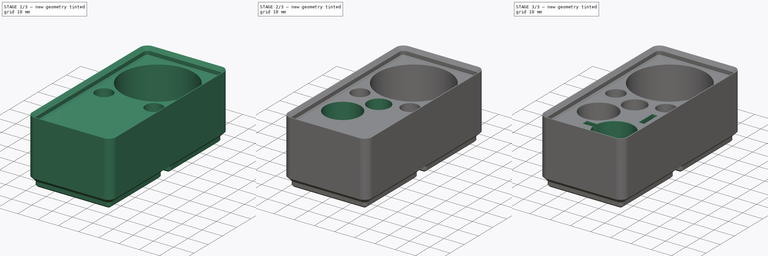
[diagram: build sequence overview — one tinted view per stage of 3, left to right]
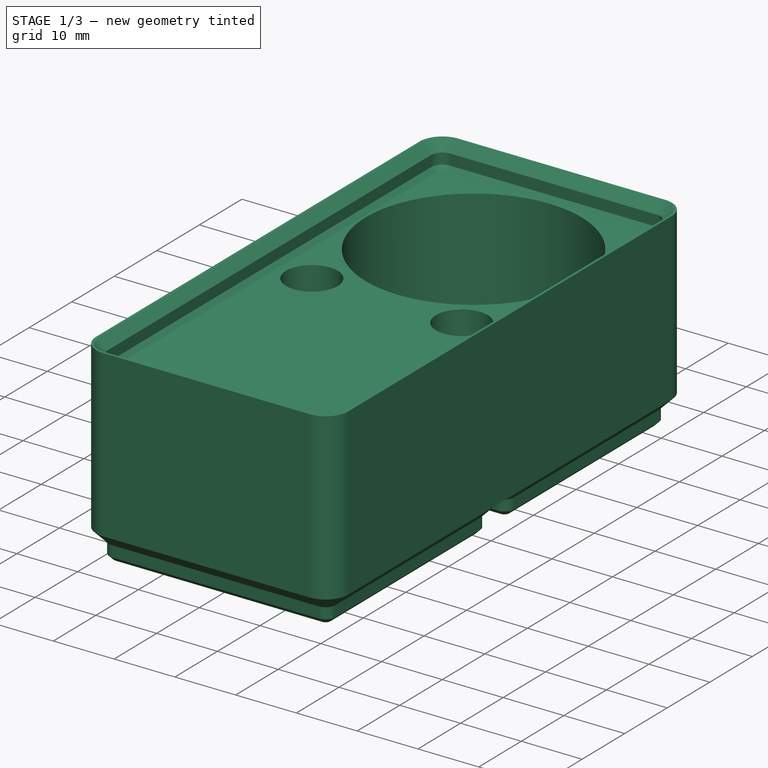
[diagram: stage 1 of 3 — iso view after this stage's code; geometry added in this stage tinted green]
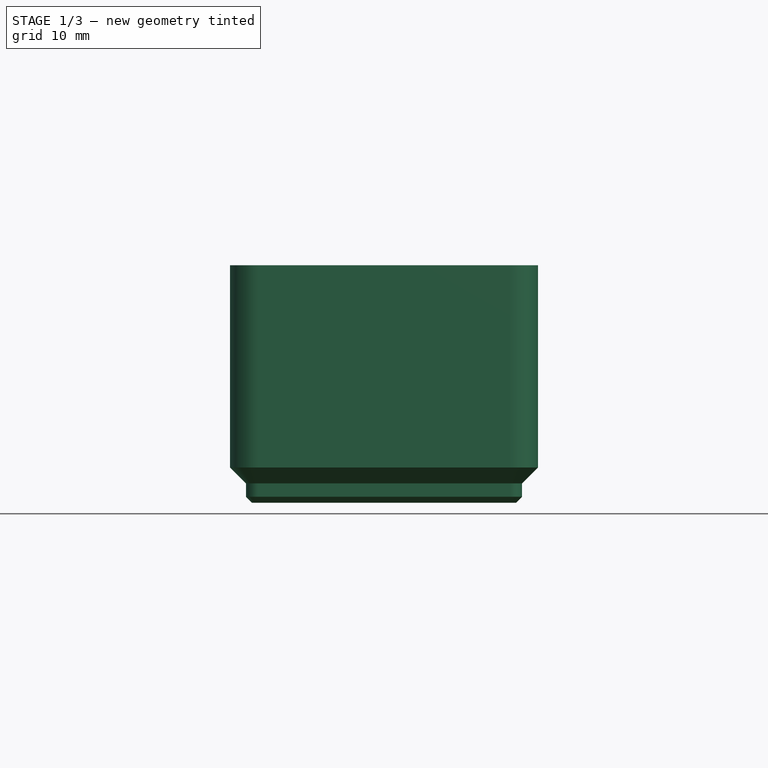
[diagram: stage 1 of 3 — front view after this stage's code; geometry added in this stage tinted green]
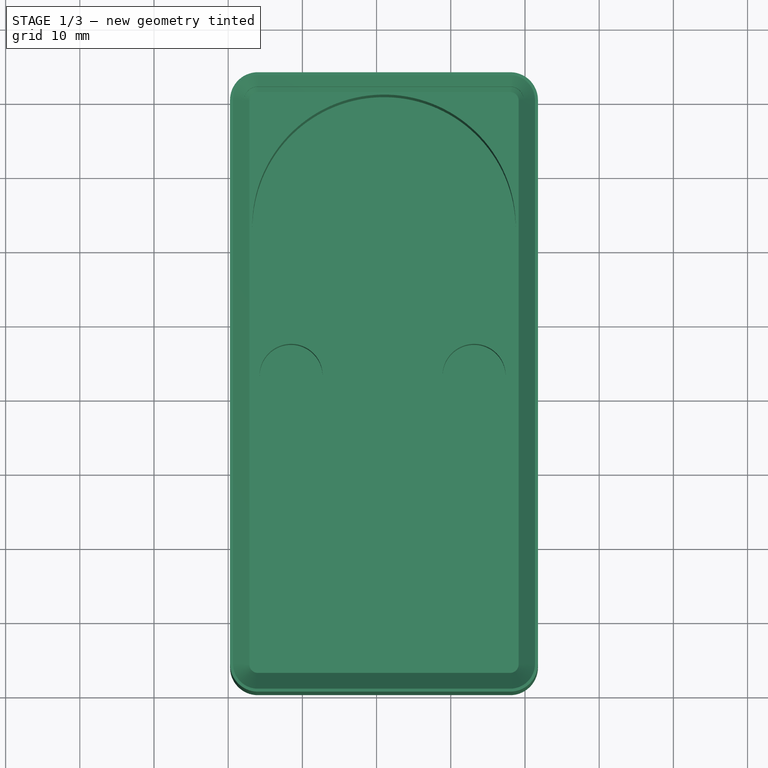
[diagram: stage 1 of 3 — top view after this stage's code; geometry added in this stage tinted green]
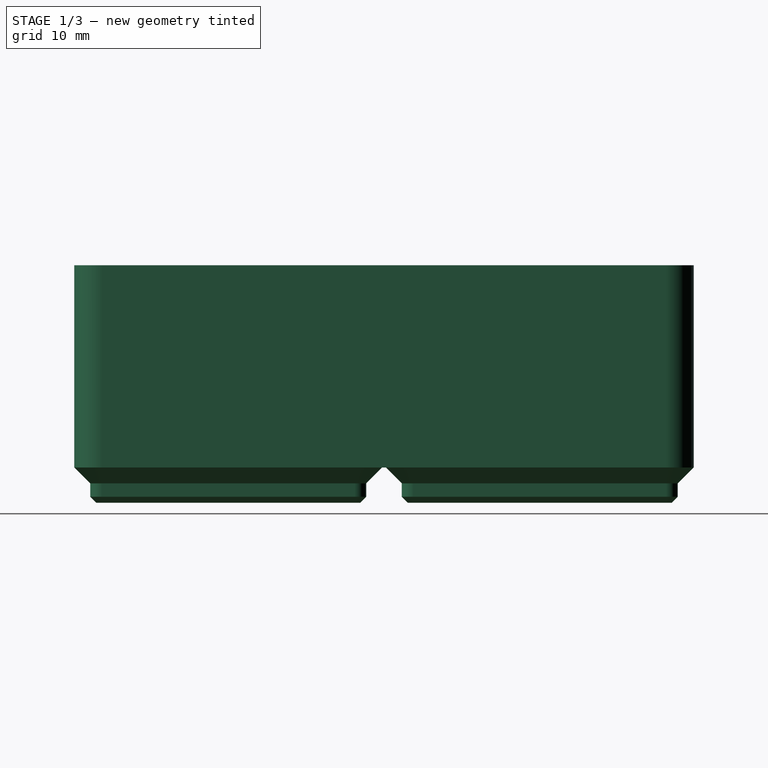
[diagram: stage 1 of 3 — right view after this stage's code; geometry added in this stage tinted green]
FCSTD DOCUMENT  (FreeCAD 1.0R39109 (Git))
Label: gridfinity_dremel_versaflame
License: All rights reserved
objects: Sketcher::SketchObject×6, PartDesign::Pocket×6, Spreadsheet::Sheet×1, PartDesign::FeaturePython×1, PartDesign::Fillet×1, PartDesign::Body×1
note: 36 computed .brp shape members not serialized (recipe doc carries the construction recipe); baked Part::Feature solids carry a one-line shape summary decoded from their .brp

FEATURE [Spreadsheet::Sheet] Spreadsheet  label="dimensions"
  cells = A1='dremel_diameter; B1(dremel_diameter)==35 mm; A2='dremel_depth; B2(dremel_depth)==20 mm; A3='tolerance; B3(tolerance)==0.5 mm; A4='soldering_tip_diameter; B4(soldering_tip_diameter)==8 mm; A5='soldering_tip_depth; B5(soldering_tip_depth)==8 mm; A6='heat_shield_diameter; B6(heat_shield_diameter)==17 mm; A7='heat_shield_depth; B7(heat_shield_depth)==15 mm; A8='soldering_tip_holder_diameter; B8(soldering_tip_holder_diameter)==10.5 mm; A9='soldering_tip_holder_depth; B9(soldering_tip_holder_depth)==15 mm; A10='chimney_diameter; B10(chimney_diameter)==18.5 mm; A11='chimney_depth; B11(chimney_depth)==20 mm; A12='wrench_height; B12(wrench_height)==2 mm; A13='wrench_length; B13(wrench_length)==9 mm; A14='wrench_depth; B14(wrench_depth)==15 mm
FEATURE [PartDesign::FeaturePython] BinBlank  # WARN: FeaturePython — macro-defined, semantics opaque (R4)
  BaseProfileBottomChamfer = 0.8
  BaseProfileHeight = 4.75
  BaseProfileTopChamfer = 2.15
  BaseProfileVerticalSection = 1.8
  Baseplate = false
  BinBottomRadius = 0.8
  BinOuterRadius = 3.75
  BinVerticalRadius = 1.6
  Clearance = 0.25
  CustomHeight = 42
  GenerationLocation = 0
  HeightUnitValue = 7
  HeightUnits = 4
  MagnetHoleDepth = 2.4
  MagnetHoleDiameter = 6.2
  MagnetHoleDistanceFromEdge = 8
  MagnetHoles = true
  MagnetHolesShape = 0
  NonStandardHeight = false
  RecessedTopDepth = 0
  ScrewHoleDepth = 6
  ScrewHoleDiameter = 3
  ScrewHoles = false
  SequentialBridgingLayerHeight = 0.2
  StackingLip = true
  StackingLipBottomChamfer = 0.7
  StackingLipTopChamfer = 1.5
  StackingLipTopLedge = 0.4
  StackingLipVerticalSection = 1.8
  Suppressed = false
  TotalHeight = 28
  WallThickness = 1
  version = 0.11.9
  xGridSize = 42
  xGridUnits = 1
  xLocationOffset = 0
  xTotalWidth = 41.5
  yGridSize = 42
  yGridUnits = 2
  yLocationOffset = 0
  yTotalWidth = 83.5
  expr: BaseProfileHeight = BaseProfileBottomChamfer + BaseProfileVerticalSection + BaseProfileTopChamfer
  expr: TotalHeight = NonStandardHeight == 1 ? CustomHeight : HeightUnits * HeightUnitValue
  expr: xTotalWidth = xGridUnits * xGridSize - (Baseplate == 1 ? 0 mm : 2 * Clearance)
  expr: yTotalWidth = yGridUnits * yGridSize - (Baseplate == 1 ? 0 mm : 2 * Clearance)
FEATURE [Sketcher::SketchObject] Sketch  label="dremel"
  ArcFitTolerance = 1e-06
  AttachmentSupport = -> [XY_Plane]
  FullyConstrained = false
  MakeInternals = false
  MapMode = 5
  expr: Constraints[0] = <<dimensions>>.dremel_diameter + <<dimensions>>.tolerance
  sketch-geometry (1):
    g0: Circle CenterX=21 CenterY=63.0554 CenterZ=0 NormalX=0 NormalY=0 NormalZ=1 AngleXU=0 Radius=17.75
  constraints (2):
    c: Diameter(g0) = 35.5
    c: DistanceX(g-1,g0) = 21
FEATURE [Sketcher::SketchObject] Sketch001  label="soldering_tips"
  ArcFitTolerance = 1e-06
  AttachmentSupport = -> [XY_Plane]
  FullyConstrained = false
  MakeInternals = false
  MapMode = 5
  expr: Constraints[0] = <<dimensions>>.soldering_tip_diameter + <<dimensions>>.tolerance
  sketch-geometry (2):
    g0: Circle CenterX=8.47718 CenterY=42.947 CenterZ=0 NormalX=0 NormalY=0 NormalZ=1 AngleXU=0 Radius=4.25
    g1: Circle CenterX=33.144 CenterY=42.947 CenterZ=0 NormalX=0 NormalY=0 NormalZ=1 AngleXU=0 Radius=4.25
  constraints (3):
    c: Diameter(g0) = 8.5
    c: Horizontal(g0,g1)
    c: Equal(g0,g1)
FEATURE [Sketcher::SketchObject] Sketch002  label="soldering_tip_holder"
  ArcFitTolerance = 1e-06
  AttachmentSupport = -> [XY_Plane]
  FullyConstrained = false
  MakeInternals = false
  MapMode = 5
  expr: Constraints[0] = <<dimensions>>.soldering_tip_holder_diameter + <<dimensions>>.tolerance
  sketch-geometry (1):
    g0: Circle CenterX=21 CenterY=38.2997 CenterZ=0 NormalX=0 NormalY=0 NormalZ=1 AngleXU=0 Radius=5.5
  constraints (2):
    c: Diameter(g0) = 11
    c: DistanceX(g-1,g0) = 21
FEATURE [Sketcher::SketchObject] Sketch003  label="heat_shield"
  ArcFitTolerance = 1e-06
  AttachmentSupport = -> [XY_Plane]
  FullyConstrained = false
  MakeInternals = false
  MapMode = 5
  expr: Constraints[0] = <<dimensions>>.heat_shield_diameter + <<dimensions>>.tolerance
  sketch-geometry (1):
    g0: Circle CenterX=12.7027 CenterY=24.7349 CenterZ=0 NormalX=0 NormalY=0 NormalZ=1 AngleXU=0 Radius=8.75
  constraints (1):
    c: Diameter(g0) = 17.5
FEATURE [Sketcher::SketchObject] Sketch004  label="chimney"
  ArcFitTolerance = 1e-06
  AttachmentSupport = -> [XY_Plane]
  FullyConstrained = false
  MakeInternals = false
  MapMode = 5
  expr: Constraints[0] = <<dimensions>>.chimney_diameter + <<dimensions>>.tolerance
  sketch-geometry (4):
    g0: ArcOfCircle CenterX=28.54 CenterY=13 CenterZ=0 NormalX=0 NormalY=0 NormalZ=1 AngleXU=0 Radius=9.5 StartAngle=3.30015 EndAngle=9.26622
    g1: LineSegment StartX=19.1592 StartY=14.5 StartZ=0 EndX=14.1592 EndY=14.5 EndZ=0
    g2: LineSegment StartX=14.1592 StartY=14.5 StartZ=0 EndX=14.1592 EndY=11.5 EndZ=0
    g3: LineSegment StartX=14.1592 StartY=11.5 StartZ=0 EndX=19.1592 EndY=11.5 EndZ=0
  constraints (12):
    c: Diameter(g0) = 19
    c: DistanceX(g0) = 28.54
    c: DistanceY(g0) = 13
    c: Coincident(g1,g2)
    c: Coincident(g2,g3)
    c: Vertical(g2)
    c: Horizontal(g1)
    c: Horizontal(g3)
    c: DistanceX(g1,g1) = 5
    c: DistanceY(g2,g2) = 3
    c: Coincident(g0,g1)
    c: Coincident(g0,g3)
FEATURE [Sketcher::SketchObject] Sketch005  label="wrench"
  ArcFitTolerance = 1e-06
  AttachmentSupport = -> [XY_Plane]
  FullyConstrained = true
  MakeInternals = false
  MapMode = 5
  expr: Constraints[8] = <<dimensions>>.wrench_length + <<dimensions>>.tolerance
  expr: Constraints[9] = <<dimensions>>.wrench_height + <<dimensions>>.tolerance
  sketch-geometry (4):
    g0: LineSegment StartX=32 StartY=35 StartZ=0 EndX=32 EndY=25.5 EndZ=0
    g1: LineSegment StartX=32 StartY=25.5 StartZ=0 EndX=34.5 EndY=25.5 EndZ=0
    g2: LineSegment StartX=34.5 StartY=25.5 StartZ=0 EndX=34.5 EndY=35 EndZ=0
    g3: LineSegment StartX=34.5 StartY=35 StartZ=0 EndX=32 EndY=35 EndZ=0
  constraints (12):
    c: Coincident(g0,g1)
    c: Coincident(g1,g2)
    c: Coincident(g2,g3)
    c: Coincident(g3,g0)
    c: Vertical(g0)
    c: Vertical(g2)
    c: Horizontal(g1)
    c: Horizontal(g3)
    c: DistanceY(g2,g2) = 9.5
    c: DistanceX(g1,g1) = 2.5
    c: DistanceY(g-1,g0) = 25.5
    c: DistanceX(g-1,g0) = 32
FEATURE [PartDesign::Pocket] Pocket
  BaseFeature = -> BinBlank
  Direction = (0,0,-1)
  Length = 20
  Length2 = 5
  Profile = -> Sketch
  ReferenceAxis = -> Sketch [N_Axis]
  Refine = true
  Suppressed = false
  Type = 0
  expr: Length = <<dimensions>>.dremel_depth
FEATURE [PartDesign::Pocket] Pocket001
  BaseFeature = -> Pocket
  Direction = (0,0,-1)
  Length = 8
  Length2 = 5
  Profile = -> Sketch001
  ReferenceAxis = -> Sketch001 [N_Axis]
  Refine = true
  Suppressed = false
  Type = 0
  expr: Length = <<dimensions>>.soldering_tip_depth
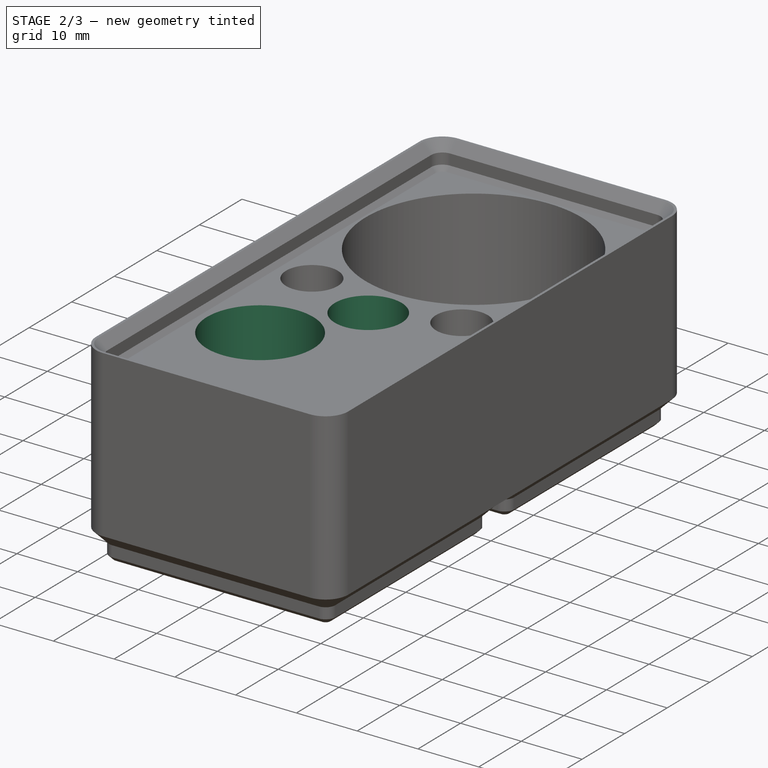
[diagram: stage 2 of 3 — iso view after this stage's code; geometry added in this stage tinted green]
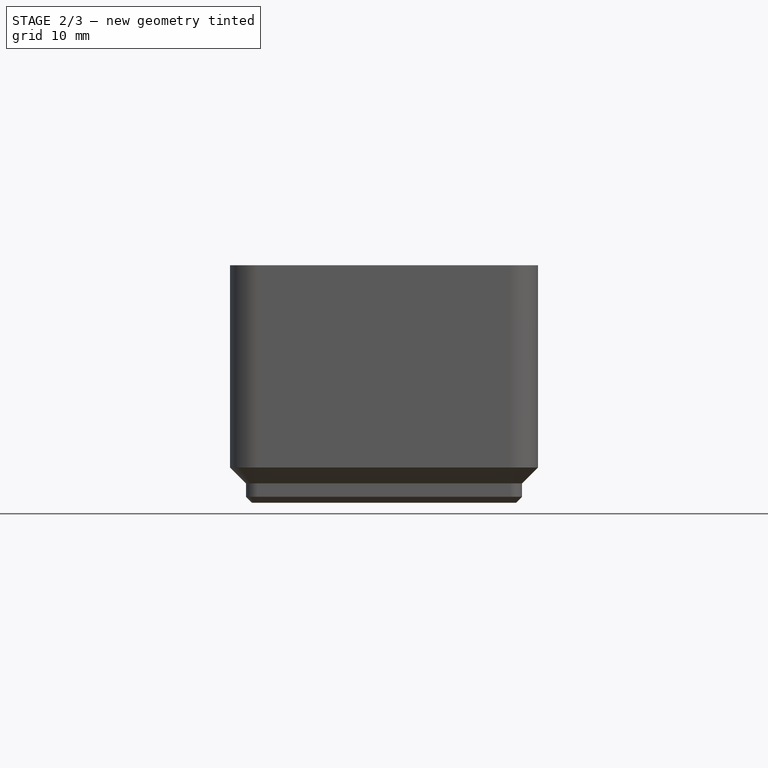
[diagram: stage 2 of 3 — front view after this stage's code; geometry added in this stage tinted green]
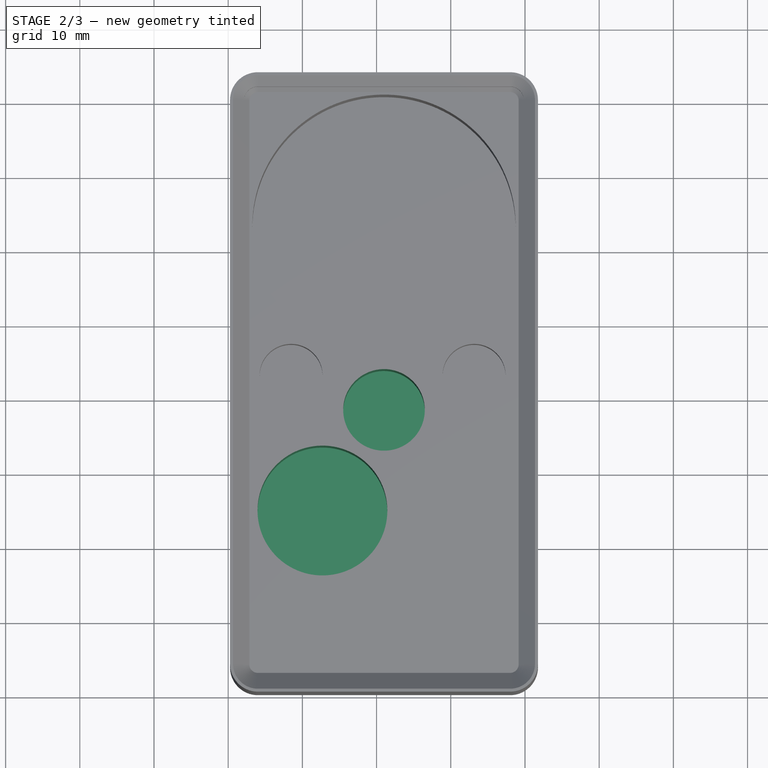
[diagram: stage 2 of 3 — top view after this stage's code; geometry added in this stage tinted green]
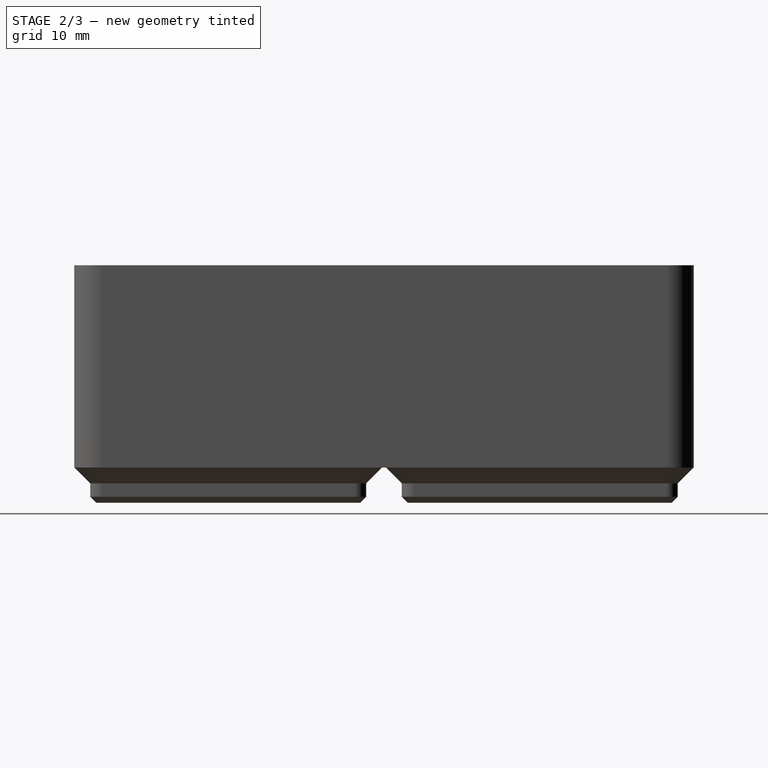
[diagram: stage 2 of 3 — right view after this stage's code; geometry added in this stage tinted green]
FEATURE [PartDesign::Pocket] Pocket002
  BaseFeature = -> Pocket001
  Direction = (0,0,-1)
  Length = 15
  Length2 = 5
  Profile = -> Sketch002
  ReferenceAxis = -> Sketch002 [N_Axis]
  Refine = true
  Suppressed = false
  Type = 0
  expr: Length = <<dimensions>>.soldering_tip_holder_depth
FEATURE [PartDesign::Pocket] Pocket003
  BaseFeature = -> Pocket002
  Direction = (0,0,-1)
  Length = 15
  Length2 = 5
  Profile = -> Sketch003
  ReferenceAxis = -> Sketch003 [N_Axis]
  Refine = true
  Suppressed = false
  Type = 0
  expr: Length = <<dimensions>>.heat_shield_depth
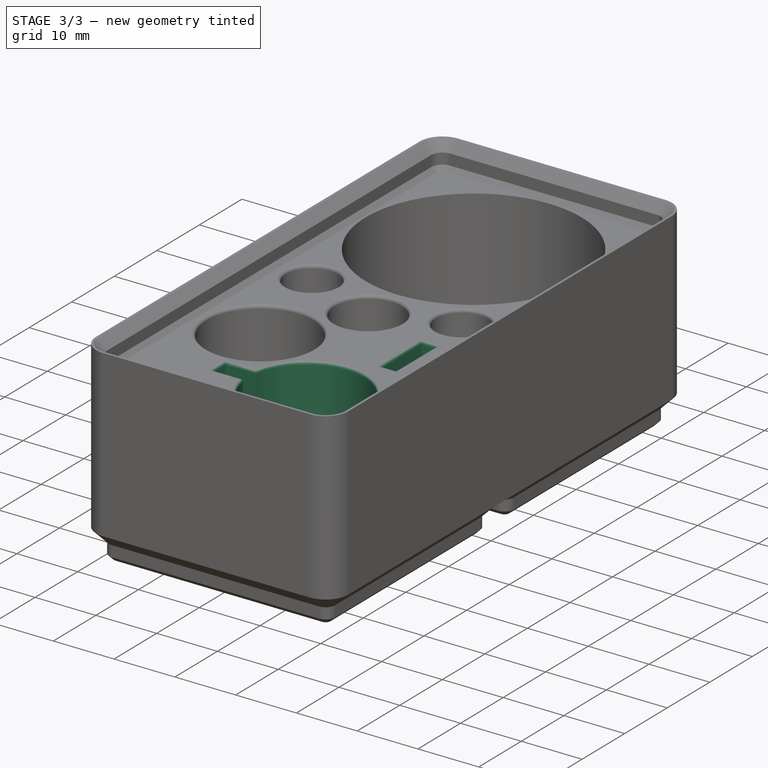
[diagram: stage 3 of 3 — iso view after this stage's code; geometry added in this stage tinted green]
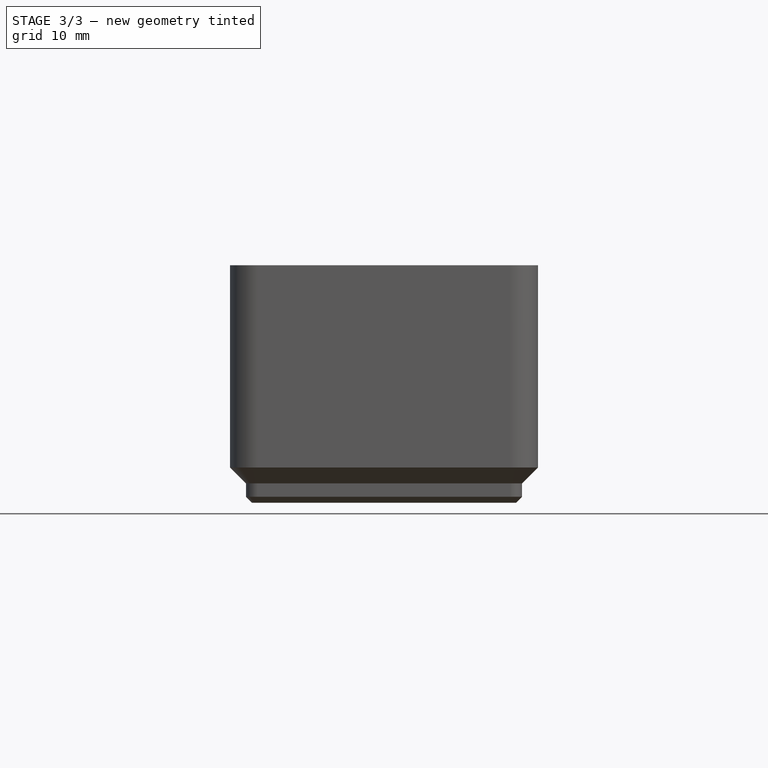
[diagram: stage 3 of 3 — front view after this stage's code; geometry added in this stage tinted green]
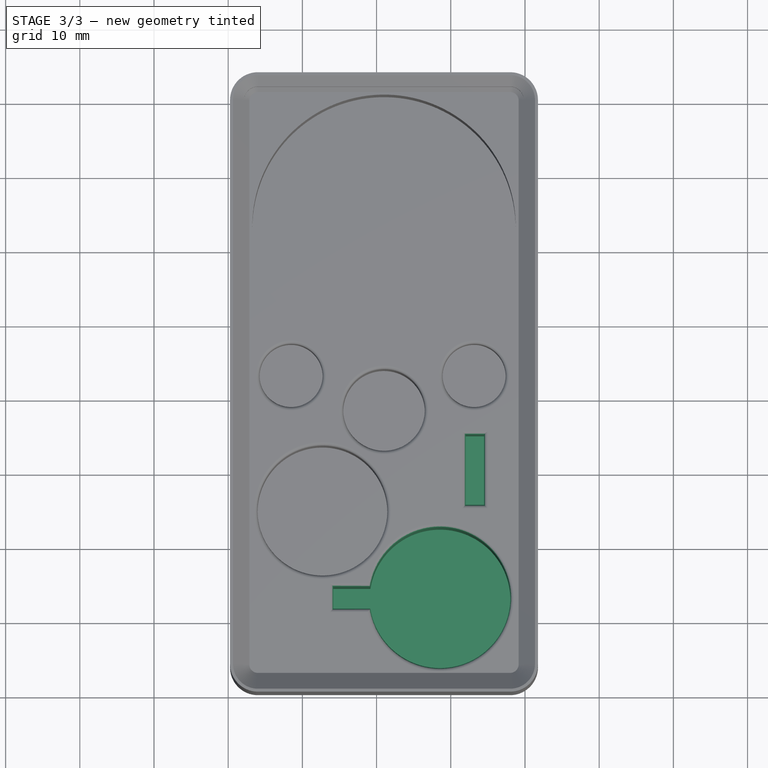
[diagram: stage 3 of 3 — top view after this stage's code; geometry added in this stage tinted green]
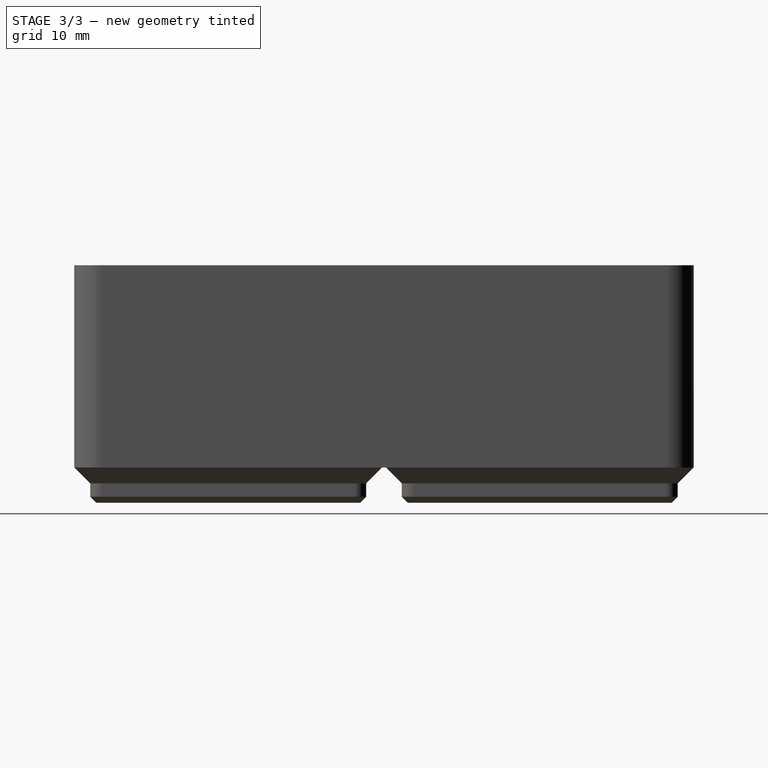
[diagram: stage 3 of 3 — right view after this stage's code; geometry added in this stage tinted green]
FEATURE [PartDesign::Pocket] Pocket004
  BaseFeature = -> Pocket003
  Direction = (0,0,-1)
  Length = 20
  Length2 = 5
  Profile = -> Sketch004
  ReferenceAxis = -> Sketch004 [N_Axis]
  Refine = true
  Suppressed = false
  Type = 0
  expr: Length = <<dimensions>>.chimney_depth
FEATURE [PartDesign::Pocket] Pocket005
  BaseFeature = -> Pocket004
  Direction = (0,0,-1)
  Length = 15
  Length2 = 5
  Profile = -> Sketch005
  ReferenceAxis = -> Sketch005 [N_Axis]
  Refine = true
  Suppressed = false
  Type = 0
  expr: Length = <<dimensions>>.wrench_depth
FEATURE [PartDesign::Fillet] Fillet
  Base = -> Pocket005 [Edge204,Edge203,Edge209,Edge211,Edge210,Edge212,Edge208,Edge213,Edge214,Edge206,Edge207,Edge205]
  BaseFeature = -> Pocket005
  Radius = 0.5
  Refine = true
  SupportTransform = false
  Suppressed = false
  UseAllEdges = false
FEATURE [PartDesign::Body] Body  label="Körper"
  AllowCompound = false
  Group = -> [BinBlank,Sketch,Sketch001,Sketch002,Sketch003,Sketch004,Sketch005,Pocket,Pocket001,Pocket002,Pocket003,Pocket004,Pocket005,Fillet]
  Origin = -> Origin
  Tip = -> Fillet
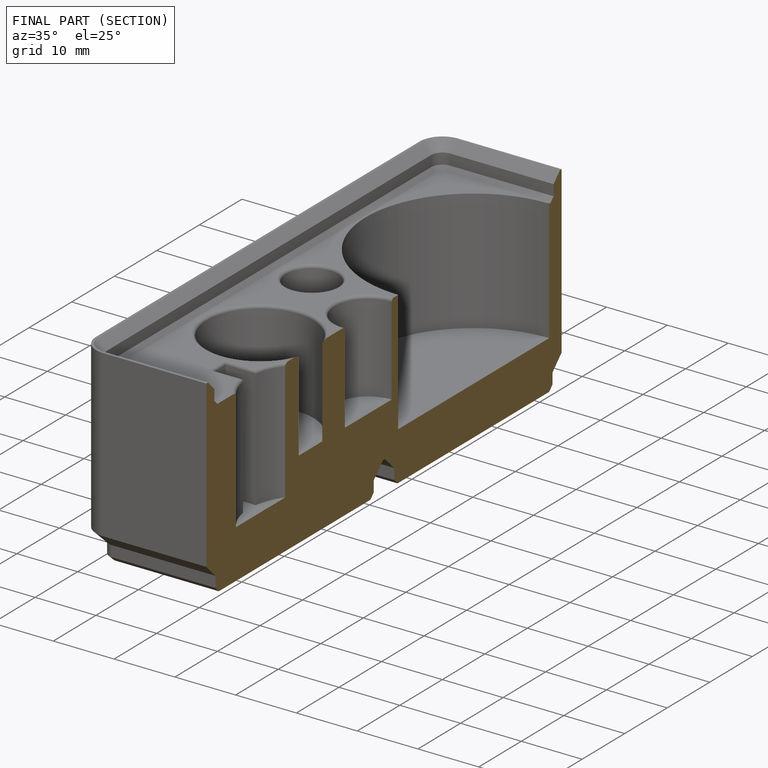
[diagram: finished part — half-section view (interior)]
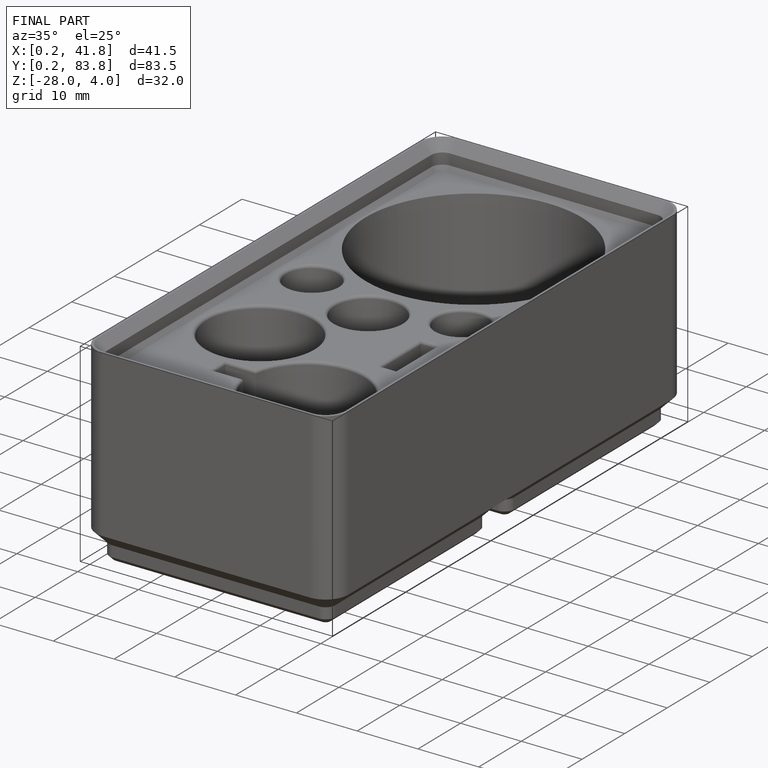
[diagram: finished part — iso view with bounding-box wireframe]
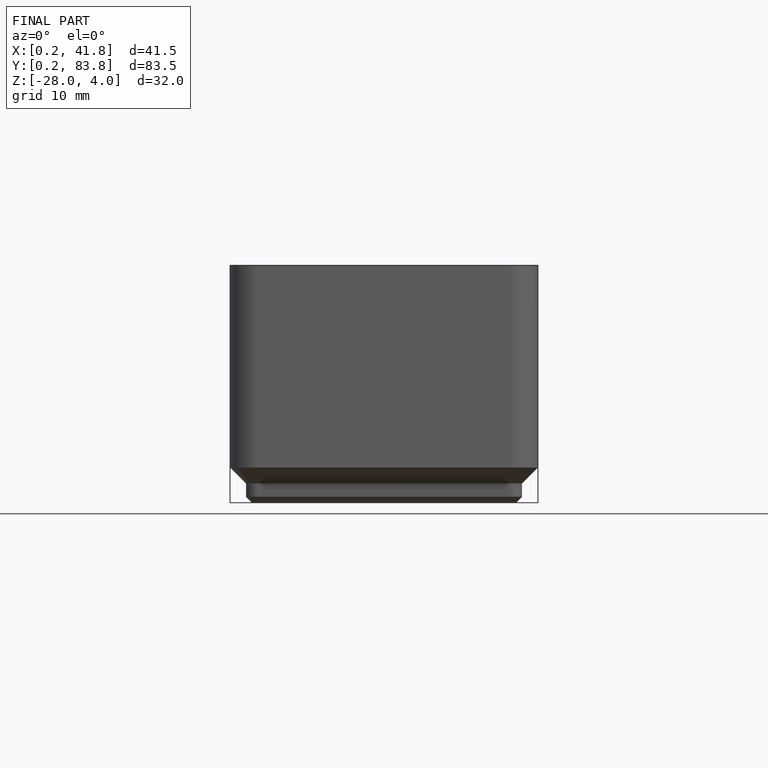
[diagram: finished part — front view with bounding-box wireframe]
